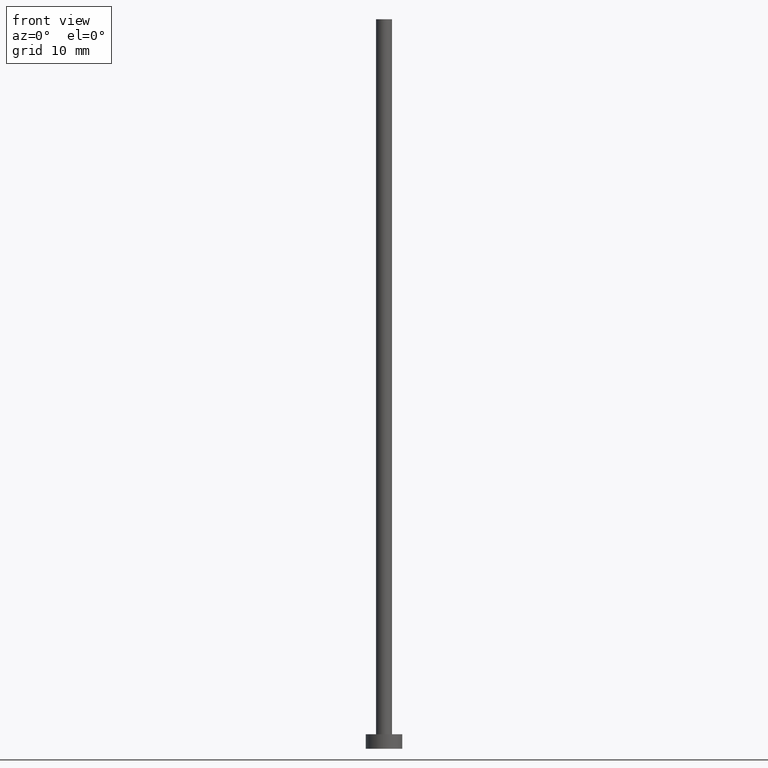
[diagram: clean part render]
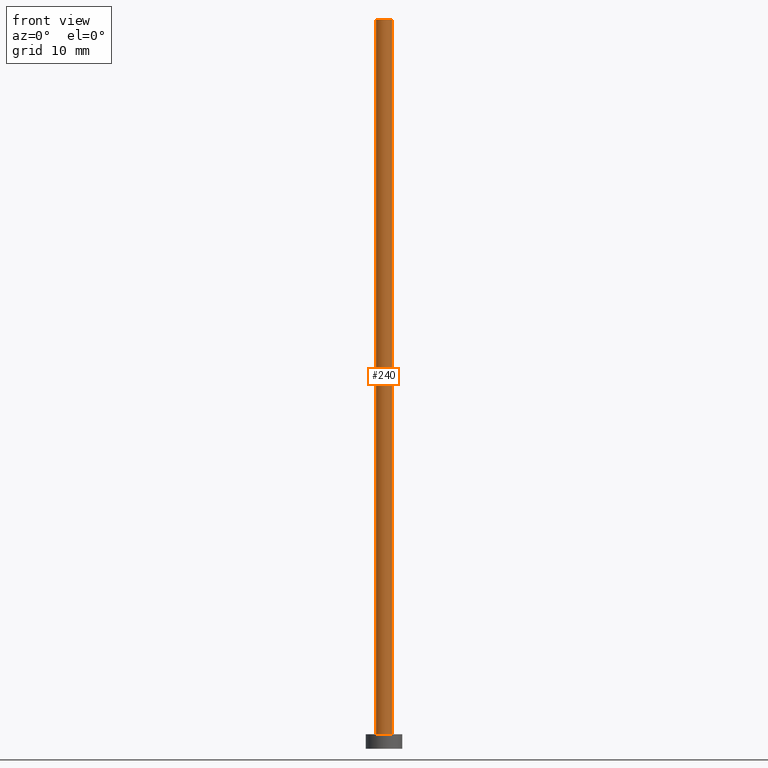
[diagram: same view with one face highlighted and labeled with its STEP entity id]
A machine part, front view. The second image highlights one B-rep face of the part: STEP entity #240.
In plain terms, the highlighted cylindrical surface (edge-blend (fillet) strip) has radius 1.1 mm, axis along (-0, -0, -1).
Its self-contained STEP definition (entity closure, byte-faithful):
#4 = FACE_OUTER_BOUND ( 'NONE', #27, .T. ) ;
#6 = DIRECTION ( 'NONE',  ( -0.000000000000000000, -0.000000000000000000, -1.000000000000000000 ) ) ;
#13 = VERTEX_POINT ( 'NONE', #60 ) ;
#16 = AXIS2_PLACEMENT_3D ( 'NONE', #44, #89, #147 ) ;
#27 = EDGE_LOOP ( 'NONE', ( #139, #227, #45, #145 ) ) ;
#29 = EDGE_CURVE ( 'NONE', #127, #190, #128, .T. ) ;
#44 = CARTESIAN_POINT ( 'NONE',  ( 0.000000000000000000, 0.000000000000000000, 100.0000000000000000 ) ) ;
#45 = ORIENTED_EDGE ( 'NONE', *, *, #29, .T. ) ;
#49 = CYLINDRICAL_SURFACE ( 'NONE', #16, 1.100000000000000089 ) ;
#60 = CARTESIAN_POINT ( 'NONE',  ( 1.100000000000000089, 1.347111479062088503E-16, 100.0000000000000000 ) ) ;
#63 = EDGE_CURVE ( 'NONE', #190, #87, #67, .T. ) ;
#67 = CIRCLE ( 'NONE', #151, 1.100000000000000089 ) ;
#80 = VECTOR ( 'NONE', #103, 1000.000000000000000 ) ;
#87 = VERTEX_POINT ( 'NONE', #215 ) ;
#88 = CARTESIAN_POINT ( 'NONE',  ( -1.100000000000000089, 0.000000000000000000, 100.0000000000000000 ) ) ;
#89 = DIRECTION ( 'NONE',  ( -0.000000000000000000, -0.000000000000000000, -1.000000000000000000 ) ) ;
#99 = LINE ( 'NONE', #173, #115 ) ;
#100 = DIRECTION ( 'NONE',  ( 0.000000000000000000, 0.000000000000000000, 1.000000000000000000 ) ) ;
#103 = DIRECTION ( 'NONE',  ( -0.000000000000000000, -0.000000000000000000, -1.000000000000000000 ) ) ;
#115 = VECTOR ( 'NONE', #6, 1000.000000000000000 ) ;
#117 = DIRECTION ( 'NONE',  ( 1.000000000000000000, 0.000000000000000000, 0.000000000000000000 ) ) ;
#124 = CARTESIAN_POINT ( 'NONE',  ( 0.000000000000000000, 0.000000000000000000, 100.0000000000000000 ) ) ;
#127 = VERTEX_POINT ( 'NONE', #88 ) ;
#128 = LINE ( 'NONE', #206, #80 ) ;
#132 = CARTESIAN_POINT ( 'NONE',  ( 0.000000000000000000, 0.000000000000000000, 2.000000000000000000 ) ) ;
#137 = CARTESIAN_POINT ( 'NONE',  ( -1.100000000000000089, 0.000000000000000000, 2.000000000000000000 ) ) ;
#139 = ORIENTED_EDGE ( 'NONE', *, *, #176, .F. ) ;
#145 = ORIENTED_EDGE ( 'NONE', *, *, #63, .T. ) ;
#147 = DIRECTION ( 'NONE',  ( -1.000000000000000000, 0.000000000000000000, 0.000000000000000000 ) ) ;
#151 = AXIS2_PLACEMENT_3D ( 'NONE', #132, #165, #117 ) ;
#165 = DIRECTION ( 'NONE',  ( 0.000000000000000000, 0.000000000000000000, 1.000000000000000000 ) ) ;
#173 = CARTESIAN_POINT ( 'NONE',  ( 1.100000000000000089, 1.347111479062088503E-16, 100.0000000000000000 ) ) ;
#174 = DIRECTION ( 'NONE',  ( 1.000000000000000000, 0.000000000000000000, 0.000000000000000000 ) ) ;
#175 = CIRCLE ( 'NONE', #197, 1.100000000000000089 ) ;
#176 = EDGE_CURVE ( 'NONE', #13, #87, #99, .T. ) ;
#178 = EDGE_CURVE ( 'NONE', #127, #13, #175, .T. ) ;
#190 = VERTEX_POINT ( 'NONE', #137 ) ;
#197 = AXIS2_PLACEMENT_3D ( 'NONE', #124, #100, #174 ) ;
#206 = CARTESIAN_POINT ( 'NONE',  ( -1.100000000000000089, 0.000000000000000000, 100.0000000000000000 ) ) ;
#215 = CARTESIAN_POINT ( 'NONE',  ( 1.100000000000000089, 1.347111479062088503E-16, 2.000000000000000000 ) ) ;
#227 = ORIENTED_EDGE ( 'NONE', *, *, #178, .F. ) ;
#240 = ADVANCED_FACE ( 'NONE', ( #4 ), #49, .T. ) ;